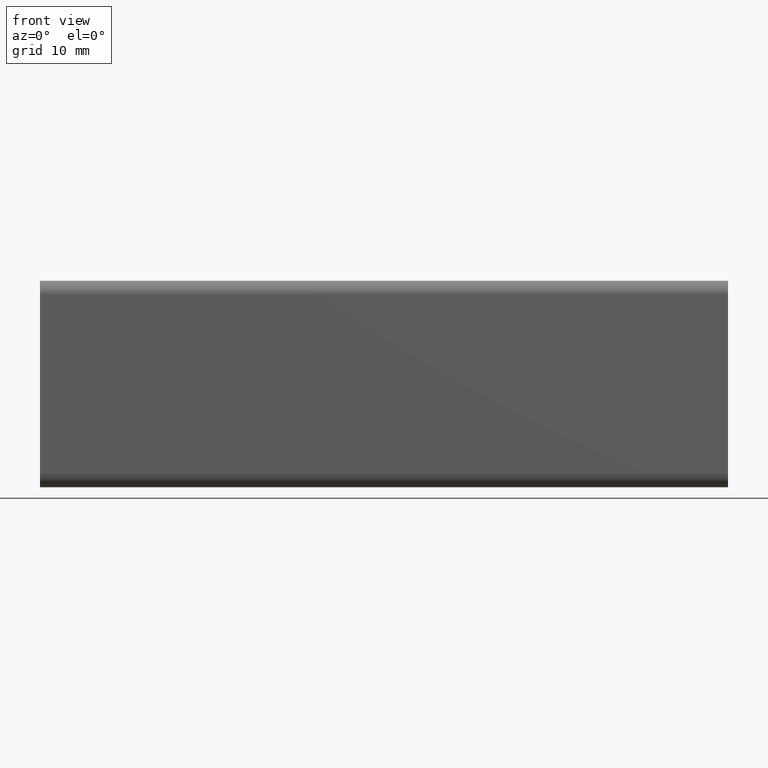
[diagram: clean part render]
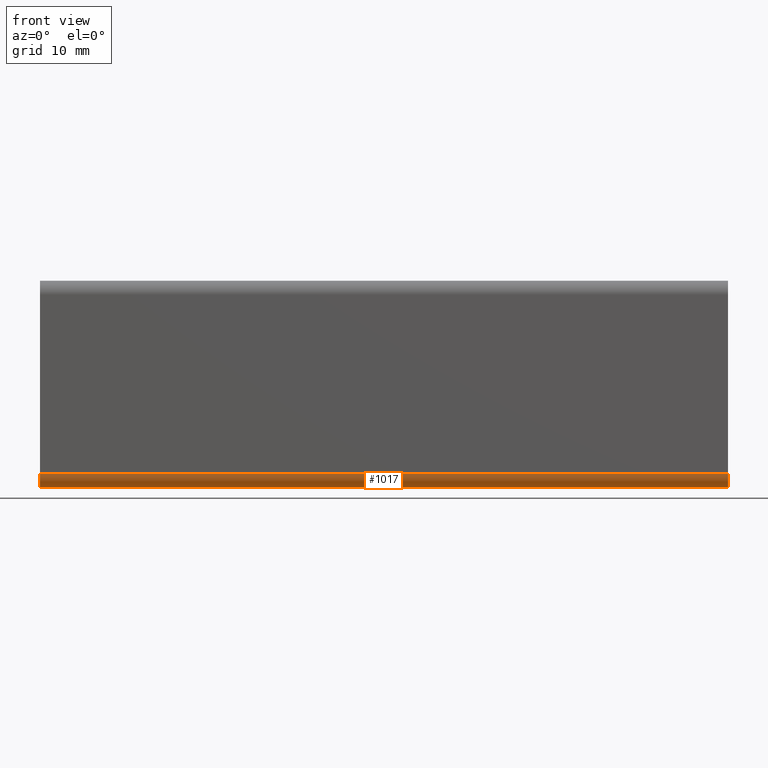
[diagram: same view with one face highlighted and labeled with its STEP entity id]
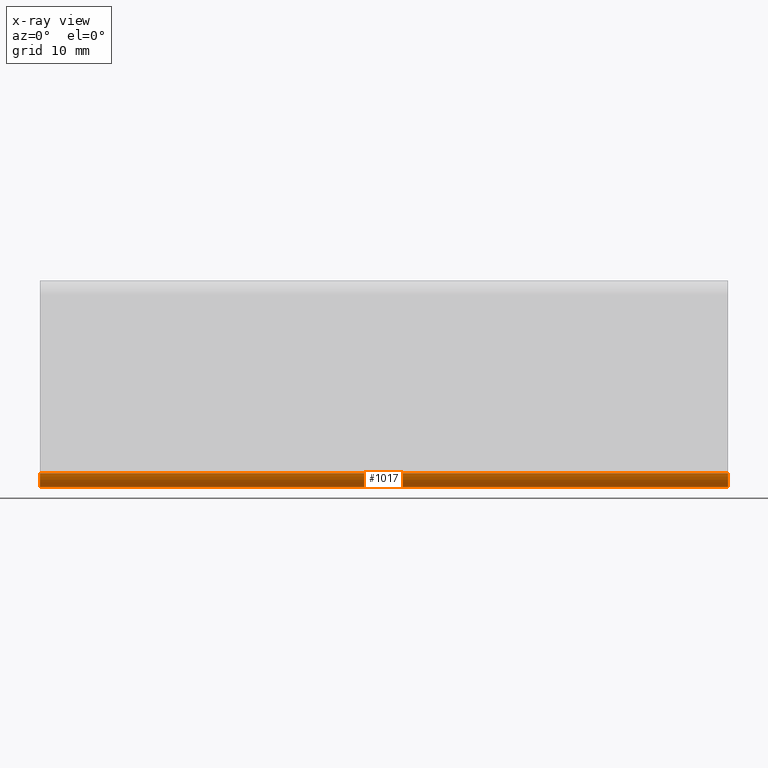
[diagram: x-ray of the same camera — body ghosted, the highlighted face saturated]
A machine part, front view. The second image highlights one B-rep face of the part: STEP entity #1017.
The next image is the same camera in x-ray: the body ghosted, the highlighted face saturated — about 0% of this face is hidden behind the body in this view.
In plain terms, the highlighted face is a freeform B-spline surface patch.
Its self-contained STEP definition (entity closure, byte-faithful):
#554=CARTESIAN_POINT('',(0.0,-18.0,-30.0));
#555=VERTEX_POINT('',#554);
#561=CARTESIAN_POINT('',(0.0,-20.0,-28.0));
#562=VERTEX_POINT('',#561);
#563=CARTESIAN_POINT('',(0.0,-20.0,-28.0));
#564=CARTESIAN_POINT('',(0.0,-19.999999999999996,-30.000000000000004));
#565=CARTESIAN_POINT('',(0.0,-18.0,-30.0));
#573=(BOUNDED_CURVE()B_SPLINE_CURVE(2,(#563,#564,#565),.UNSPECIFIED.,.F.,.U.)CURVE()GEOMETRIC_REPRESENTATION_ITEM()QUASI_UNIFORM_CURVE()RATIONAL_B_SPLINE_CURVE((1.0,0.707106781186548,1.0))REPRESENTATION_ITEM(''));
#574=EDGE_CURVE('',#562,#555,#573,.T.);
#606=CARTESIAN_POINT('',(100.0,-20.0,-28.0));
#607=VERTEX_POINT('',#606);
#613=CARTESIAN_POINT('',(100.0,-18.0,-30.0));
#614=VERTEX_POINT('',#613);
#615=CARTESIAN_POINT('',(100.0,-20.0,-28.0));
#616=CARTESIAN_POINT('',(100.0,-19.999999999999996,-30.000000000000004));
#617=CARTESIAN_POINT('',(100.0,-18.0,-30.0));
#625=(BOUNDED_CURVE()B_SPLINE_CURVE(2,(#615,#616,#617),.UNSPECIFIED.,.F.,.U.)CURVE()GEOMETRIC_REPRESENTATION_ITEM()QUASI_UNIFORM_CURVE()RATIONAL_B_SPLINE_CURVE((1.0,0.707106781186548,1.0))REPRESENTATION_ITEM(''));
#626=EDGE_CURVE('',#607,#614,#625,.T.);
#985=CARTESIAN_POINT('',(100.0,-18.0,-30.0));
#986=CARTESIAN_POINT('',(0.0,-18.0,-30.0));
#987=QUASI_UNIFORM_CURVE('',1,(#985,#986),.UNSPECIFIED.,.F.,.U.);
#988=EDGE_CURVE('',#614,#555,#987,.T.);
#993=CARTESIAN_POINT('',(102.500000000000000,-19.999314649951110,-27.947646103384251));
#994=CARTESIAN_POINT('',(-2.562500000000000,-19.999314649951110,-27.947646103384251));
#995=CARTESIAN_POINT('',(102.500000000000010,-20.056448902391981,-30.129515177188235));
#996=CARTESIAN_POINT('',(-2.562500000000000,-20.056448902391981,-30.129515177188235));
#997=CARTESIAN_POINT('',(102.500000000000000,-17.877902920930278,-29.996269596843739));
#998=CARTESIAN_POINT('',(-2.562500000000000,-17.877902920930278,-29.996269596843739));
#1006=(BOUNDED_SURFACE()B_SPLINE_SURFACE(1,2,((#993,#995,#997),(#994,#996,#998)),.UNSPECIFIED.,.F.,.F.,.U.)B_SPLINE_SURFACE_WITH_KNOTS((2,2),(3,3),(0.0,105.062500000000000),(0.0,3.520084247134679),.UNSPECIFIED.)GEOMETRIC_REPRESENTATION_ITEM()RATIONAL_B_SPLINE_SURFACE(((1.0,0.675590207615660,1.0),(1.0,0.675590207615660,1.0)))REPRESENTATION_ITEM('')SURFACE());
#1007=ORIENTED_EDGE('',*,*,#574,.T.);
#1008=ORIENTED_EDGE('',*,*,#988,.F.);
#1009=ORIENTED_EDGE('',*,*,#626,.F.);
#1010=CARTESIAN_POINT('',(100.0,-20.0,-28.0));
#1011=CARTESIAN_POINT('',(0.0,-20.0,-28.0));
#1012=QUASI_UNIFORM_CURVE('',1,(#1010,#1011),.UNSPECIFIED.,.F.,.U.);
#1013=EDGE_CURVE('',#607,#562,#1012,.T.);
#1014=ORIENTED_EDGE('',*,*,#1013,.T.);
#1015=EDGE_LOOP('',(#1007,#1008,#1009,#1014));
#1016=FACE_OUTER_BOUND('',#1015,.T.);
#1017=ADVANCED_FACE('',(#1016),#1006,.T.);